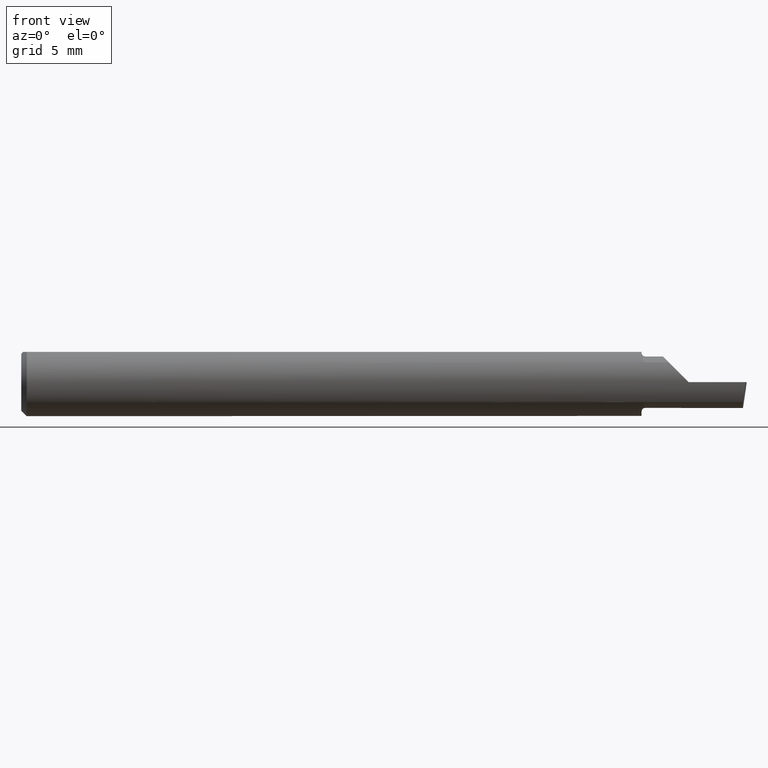
[diagram: clean part render]
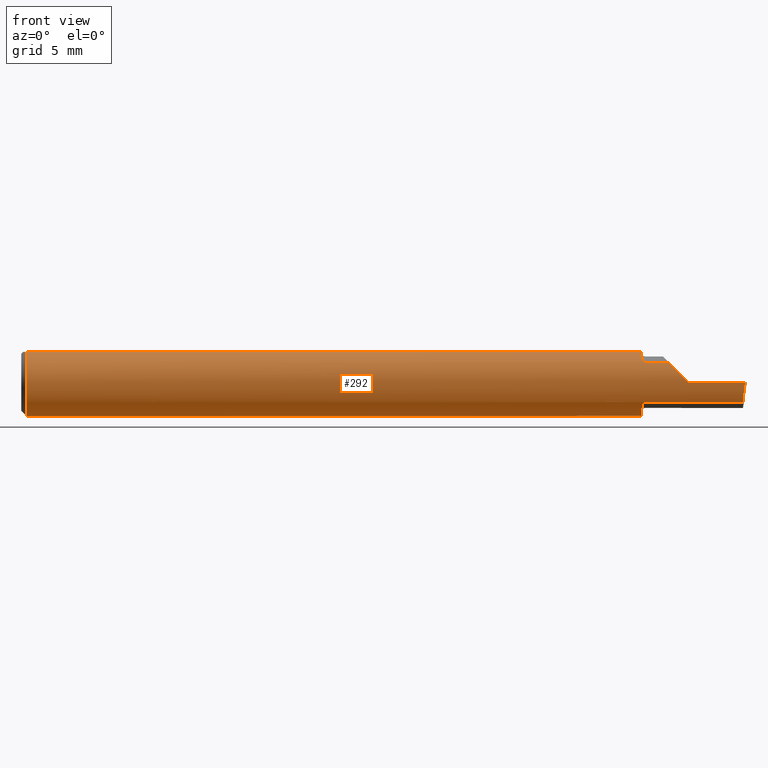
[diagram: same view with one face highlighted and labeled with its STEP entity id]
A machine part, front view. The second image highlights one B-rep face of the part: STEP entity #292.
In plain terms, the highlighted cylindrical surface (edge-blend (fillet) strip) has radius 2.3774 mm, axis along (-1, -0, -0).
Its self-contained STEP definition (entity closure, byte-faithful):
#2 = CARTESIAN_POINT ( 'NONE',  ( 1.717274038841562378, -0.07524850451016455721, 0.05566765164098562424 ) ) ;
#11 = LINE ( 'NONE', #409, #120 ) ;
#21 = DIRECTION ( 'NONE',  ( 1.000000000000000000, 4.268512490100411279E-18, 0.000000000000000000 ) ) ;
#24 = CARTESIAN_POINT ( 'NONE',  ( 1.709999999999999964, 0.04209513035969836975, 0.08360000000000000764 ) ) ;
#28 = ORIENTED_EDGE ( 'NONE', *, *, #442, .F. ) ;
#29 = EDGE_CURVE ( 'NONE', #616, #217, #559, .T. ) ;
#35 = ORIENTED_EDGE ( 'NONE', *, *, #494, .F. ) ;
#43 = CIRCLE ( 'NONE', #403, 0.09360000000000001652 ) ;
#53 = VECTOR ( 'NONE', #121, 39.37007874015748143 ) ;
#54 = CARTESIAN_POINT ( 'NONE',  ( 1.718473676570713593, -0.07585610839796945448, 0.05483680961684311850 ) ) ;
#56 = CARTESIAN_POINT ( 'NONE',  ( 1.995862624392068074, -0.09360000000000009979, -6.605666309584466665E-17 ) ) ;
#61 = DIRECTION ( 'NONE',  ( 0.000000000000000000, 1.000000000000000000, 0.000000000000000000 ) ) ;
#64 = CARTESIAN_POINT ( 'NONE',  ( 1.714827003863616639, -0.07277143353888318456, -0.05888471105536113165 ) ) ;
#67 = CARTESIAN_POINT ( 'NONE',  ( 1.720000000000000195, -0.07608366013071793388, -0.05451822320209443601 ) ) ;
#86 = CARTESIAN_POINT ( 'NONE',  ( 1.995862624392068074, -0.09360000000000009979, -6.605666309584466665E-17 ) ) ;
#93 = EDGE_CURVE ( 'NONE', #404, #283, #189, .T. ) ;
#94 = CARTESIAN_POINT ( 'NONE',  ( 1.709999999999999964, -0.05124705882352875719, -0.07832431909654745394 ) ) ;
#99 = DIRECTION ( 'NONE',  ( 0.000000000000000000, 0.000000000000000000, 1.000000000000000000 ) ) ;
#104 = CARTESIAN_POINT ( 'NONE',  ( 1.993440754331651465, -0.09359999999999997489, -0.01971778966533913047 ) ) ;
#105 = EDGE_CURVE ( 'NONE', #217, #397, #139, .T. ) ;
#120 = VECTOR ( 'NONE', #599, 39.37007874015748143 ) ;
#121 = DIRECTION ( 'NONE',  ( 1.000000000000000000, 0.000000000000000000, 0.000000000000000000 ) ) ;
#132 = CARTESIAN_POINT ( 'NONE',  ( 1.785481776797905207, -0.07608366013071816980, 0.05451822320209426254 ) ) ;
#135 = VERTEX_POINT ( 'NONE', #24 ) ;
#139 = B_SPLINE_CURVE_WITH_KNOTS ( 'NONE', 3,
 ( #67, #163, #357, #305, #267, #548, #64, #506, #496, #265, #413, #603 ),
 .UNSPECIFIED., .F., .F.,
 ( 4, 2, 2, 2, 2, 4 ),
 ( 1.960583526681140727E-07, 6.028985140017707658E-05, 0.0001203836444476860413, 0.0002405712305427156665, 0.0004809464027327820185, 0.0009616967471129146683 ),
 .UNSPECIFIED. ) ;
#141 = VERTEX_POINT ( 'NONE', #155 ) ;
#143 = CARTESIAN_POINT ( 'NONE',  ( 1.715489888950000541, -0.07368588061300233860, 0.05773267164777336202 ) ) ;
#147 = CARTESIAN_POINT ( 'NONE',  ( 1.709999999999999964, -0.05124705882352875719, 0.07832431909654745394 ) ) ;
#153 = CARTESIAN_POINT ( 'NONE',  ( 0.01499999999999999771, 0.000000000000000000, 0.000000000000000000 ) ) ;
#155 = CARTESIAN_POINT ( 'NONE',  ( 1.785481776797905207, -0.07608366013071816980, 0.05451822320209426254 ) ) ;
#160 = EDGE_CURVE ( 'NONE', #197, #565, #541, .T. ) ;
#163 = CARTESIAN_POINT ( 'NONE',  ( 1.719195764731853204, -0.07608366013071808653, -0.05451822320209438744 ) ) ;
#168 = ORIENTED_EDGE ( 'NONE', *, *, #160, .F. ) ;
#171 = EDGE_CURVE ( 'NONE', #197, #135, #329, .T. ) ;
#178 = CARTESIAN_POINT ( 'NONE',  ( 5.659797890829555466E-31, -0.09359999999999998876, 1.030335658007946046E-15 ) ) ;
#183 = ORIENTED_EDGE ( 'NONE', *, *, #216, .T. ) ;
#188 = CARTESIAN_POINT ( 'NONE',  ( 1.716784836976331441, -0.07487406389417279595, 0.05617172020063040255 ) ) ;
#189 = CIRCLE ( 'NONE', #269, 0.09360000000000001652 ) ;
#190 = ORIENTED_EDGE ( 'NONE', *, *, #171, .T. ) ;
#192 = CARTESIAN_POINT ( 'NONE',  ( 1.710534125572247044, -0.06132673142899455060, 0.07097811612434590245 ) ) ;
#197 = VERTEX_POINT ( 'NONE', #423 ) ;
#199 = VECTOR ( 'NONE', #426, 39.37007874015748143 ) ;
#215 = DIRECTION ( 'NONE',  ( 0.000000000000000000, 1.000000000000000000, 0.000000000000000000 ) ) ;
#216 = EDGE_CURVE ( 'NONE', #555, #141, #407, .T. ) ;
#217 = VERTEX_POINT ( 'NONE', #229 ) ;
#218 = AXIS2_PLACEMENT_3D ( 'NONE', #567, #284, #281 ) ;
#229 = CARTESIAN_POINT ( 'NONE',  ( 1.720000000000000195, -0.07608366013071793388, -0.05451822320209443601 ) ) ;
#235 = CARTESIAN_POINT ( 'NONE',  ( 1.840000000000000080, -0.09360000000000005815, 1.959434878635762025E-17 ) ) ;
#237 =( BOUNDED_CURVE ( )  B_SPLINE_CURVE ( 3, ( #56, #104, #543, #312 ),
 .UNSPECIFIED., .F., .T. ) 
 B_SPLINE_CURVE_WITH_KNOTS ( ( 4, 4 ),
 ( 4.922438424664829171, 5.544189768309972344 ),
 .UNSPECIFIED. ) 
 CURVE ( )  GEOMETRIC_REPRESENTATION_ITEM ( )  RATIONAL_B_SPLINE_CURVE ( ( 1.000000000000000000, 0.9680440490283177546, 0.9680440490283177546, 1.000000000000000000 ) ) 
 REPRESENTATION_ITEM ( '' )  );
#239 = ORIENTED_EDGE ( 'NONE', *, *, #345, .F. ) ;
#241 = CARTESIAN_POINT ( 'NONE',  ( 1.713144100988027274, -0.06997305607905093816, 0.06223599654134575471 ) ) ;
#251 = ORIENTED_EDGE ( 'NONE', *, *, #105, .F. ) ;
#261 = VERTEX_POINT ( 'NONE', #86 ) ;
#265 = CARTESIAN_POINT ( 'NONE',  ( 1.710545495784617565, -0.06137120719773635213, -0.07093526316025884626 ) ) ;
#267 = CARTESIAN_POINT ( 'NONE',  ( 1.716772139689988652, -0.07486452143272069593, -0.05618454731867568441 ) ) ;
#269 = AXIS2_PLACEMENT_3D ( 'NONE', #459, #21, #215 ) ;
#277 = VERTEX_POINT ( 'NONE', #475 ) ;
#279 = EDGE_CURVE ( 'NONE', #261, #555, #462, .T. ) ;
#281 = DIRECTION ( 'NONE',  ( 0.000000000000000000, 0.000000000000000000, 1.000000000000000000 ) ) ;
#283 = VERTEX_POINT ( 'NONE', #373 ) ;
#284 = DIRECTION ( 'NONE',  ( -1.000000000000000000, -0.000000000000000000, -0.000000000000000000 ) ) ;
#291 = AXIS2_PLACEMENT_3D ( 'NONE', #153, #349, #99 ) ;
#292 = ADVANCED_FACE ( 'NONE', ( #376 ), #472, .T. ) ;
#294 = CARTESIAN_POINT ( 'NONE',  ( 1.709999999999999964, -0.04209513035969836975, 0.08360000000000000764 ) ) ;
#305 = CARTESIAN_POINT ( 'NONE',  ( 1.717255593289993776, -0.07523687841986032021, -0.05568342680279920326 ) ) ;
#312 = CARTESIAN_POINT ( 'NONE',  ( 1.989625015145392917, -0.07608366013071815592, -0.05451822320209428335 ) ) ;
#315 = B_SPLINE_CURVE_WITH_KNOTS ( 'NONE', 3,
 ( #147, #485, #192, #383, #241, #487, #143, #188, #2, #54, #390, #483 ),
 .UNSPECIFIED., .F., .F.,
 ( 4, 2, 2, 2, 2, 4 ),
 ( 0.0001292192584720408327, 0.0006028894267275358015, 0.0008397245108552831233, 0.0009581420529191532606, 0.001017350823951088546, 0.001076559594983023506 ),
 .UNSPECIFIED. ) ;
#328 = VERTEX_POINT ( 'NONE', #574 ) ;
#329 = LINE ( 'NONE', #379, #53 ) ;
#345 = EDGE_CURVE ( 'NONE', #283, #277, #315, .T. ) ;
#349 = DIRECTION ( 'NONE',  ( -1.000000000000000000, -0.000000000000000000, -0.000000000000000000 ) ) ;
#352 = DIRECTION ( 'NONE',  ( 1.000000000000000000, 4.268512490100411279E-18, 0.000000000000000000 ) ) ;
#357 = CARTESIAN_POINT ( 'NONE',  ( 1.718462354721605800, -0.07585260197937360171, -0.05484172378605783882 ) ) ;
#359 = CARTESIAN_POINT ( 'NONE',  ( 0.000000000000000000, -0.04209513035969835587, 0.08360000000000000764 ) ) ;
#366 = ORIENTED_EDGE ( 'NONE', *, *, #29, .F. ) ;
#373 = CARTESIAN_POINT ( 'NONE',  ( 1.709999999999999964, -0.05124705882352875719, 0.07832431909654745394 ) ) ;
#376 = FACE_OUTER_BOUND ( 'NONE', #380, .T. ) ;
#379 = CARTESIAN_POINT ( 'NONE',  ( 0.000000000000000000, 0.04209513035969837669, 0.08360000000000000764 ) ) ;
#380 = EDGE_LOOP ( 'NONE', ( #28, #531, #183, #35, #239, #408, #552, #385, #168, #190, #469, #251, #366 ) ) ;
#383 = CARTESIAN_POINT ( 'NONE',  ( 1.712368935748502130, -0.06790301253196910636, 0.06449508607765816470 ) ) ;
#385 = ORIENTED_EDGE ( 'NONE', *, *, #431, .F. ) ;
#390 = CARTESIAN_POINT ( 'NONE',  ( 1.719201872979496892, -0.07608366013071805878, 0.05451822320209435274 ) ) ;
#397 = VERTEX_POINT ( 'NONE', #94 ) ;
#402 = DIRECTION ( 'NONE',  ( -1.000000000000000000, -0.000000000000000000, -0.000000000000000000 ) ) ;
#403 = AXIS2_PLACEMENT_3D ( 'NONE', #505, #352, #61 ) ;
#404 = VERTEX_POINT ( 'NONE', #294 ) ;
#405 = LINE ( 'NONE', #359, #471 ) ;
#407 =( BOUNDED_CURVE ( )  B_SPLINE_CURVE ( 3, ( #235, #606, #609, #132 ),
 .UNSPECIFIED., .F., .T. ) 
 B_SPLINE_CURVE_WITH_KNOTS ( ( 4, 4 ),
 ( 4.712388980384689674, 5.334140324029831959 ),
 .UNSPECIFIED. ) 
 CURVE ( )  GEOMETRIC_REPRESENTATION_ITEM ( )  RATIONAL_B_SPLINE_CURVE ( ( 1.000000000000000000, 0.9680440490283178656, 0.9680440490283178656, 1.000000000000000000 ) ) 
 REPRESENTATION_ITEM ( '' )  );
#408 = ORIENTED_EDGE ( 'NONE', *, *, #93, .F. ) ;
#409 = CARTESIAN_POINT ( 'NONE',  ( 1.795000000000000151, -0.07608366013071815592, 0.05451822320209428335 ) ) ;
#413 = CARTESIAN_POINT ( 'NONE',  ( 1.709999999999999520, -0.05647823901975165817, -0.07490159417120388630 ) ) ;
#422 = AXIS2_PLACEMENT_3D ( 'NONE', #448, #402, #544 ) ;
#423 = CARTESIAN_POINT ( 'NONE',  ( 0.01499999999999999771, 0.04209513035969837669, 0.08360000000000000764 ) ) ;
#426 = DIRECTION ( 'NONE',  ( -1.000000000000000000, -0.000000000000000000, -0.000000000000000000 ) ) ;
#431 = EDGE_CURVE ( 'NONE', #565, #328, #512, .T. ) ;
#442 = EDGE_CURVE ( 'NONE', #261, #616, #237, .T. ) ;
#446 = DIRECTION ( 'NONE',  ( -1.000000000000000000, -0.000000000000000000, -0.000000000000000000 ) ) ;
#448 = CARTESIAN_POINT ( 'NONE',  ( 0.01499999999999999771, 0.000000000000000000, 0.000000000000000000 ) ) ;
#449 = CARTESIAN_POINT ( 'NONE',  ( 1.840000000000000080, -0.09360000000000005815, 1.959434878635762025E-17 ) ) ;
#459 = CARTESIAN_POINT ( 'NONE',  ( 1.709999999999999964, 0.000000000000000000, 0.000000000000000000 ) ) ;
#462 = LINE ( 'NONE', #178, #199 ) ;
#469 = ORIENTED_EDGE ( 'NONE', *, *, #484, .F. ) ;
#471 = VECTOR ( 'NONE', #446, 39.37007874015748143 ) ;
#472 = CYLINDRICAL_SURFACE ( 'NONE', #218, 0.09360000000000001652 ) ;
#475 = CARTESIAN_POINT ( 'NONE',  ( 1.720000000000000195, -0.07608366013071798939, 0.05451822320209439438 ) ) ;
#483 = CARTESIAN_POINT ( 'NONE',  ( 1.720000000000000195, -0.07608366013071798939, 0.05451822320209439438 ) ) ;
#484 = EDGE_CURVE ( 'NONE', #397, #135, #43, .T. ) ;
#485 = CARTESIAN_POINT ( 'NONE',  ( 1.710000000000000409, -0.05646263573910658556, 0.07491180328952479206 ) ) ;
#487 = CARTESIAN_POINT ( 'NONE',  ( 1.714839705942174497, -0.07279020899454211047, 0.05886163806049839881 ) ) ;
#494 = EDGE_CURVE ( 'NONE', #277, #141, #11, .T. ) ;
#496 = CARTESIAN_POINT ( 'NONE',  ( 1.712366482919568389, -0.06789235473351258598, -0.06450509535586744503 ) ) ;
#499 = CARTESIAN_POINT ( 'NONE',  ( 1.989625015145392917, -0.07608366013071815592, -0.05451822320209428335 ) ) ;
#505 = CARTESIAN_POINT ( 'NONE',  ( 1.709999999999999964, 0.000000000000000000, 0.000000000000000000 ) ) ;
#506 = CARTESIAN_POINT ( 'NONE',  ( 1.713141534512609088, -0.06996407692806697054, -0.06224556916852273802 ) ) ;
#512 = CIRCLE ( 'NONE', #291, 0.09360000000000001652 ) ;
#517 = DIRECTION ( 'NONE',  ( -1.000000000000000000, -4.268512490100411279E-18, -0.000000000000000000 ) ) ;
#528 = CARTESIAN_POINT ( 'NONE',  ( 1.795000000000000151, -0.07608366013071815592, -0.05451822320209428335 ) ) ;
#531 = ORIENTED_EDGE ( 'NONE', *, *, #279, .T. ) ;
#541 = CIRCLE ( 'NONE', #422, 0.09360000000000001652 ) ;
#543 = CARTESIAN_POINT ( 'NONE',  ( 1.991292915001083852, -0.08756847698997992369, -0.03849042825095493753 ) ) ;
#544 = DIRECTION ( 'NONE',  ( 0.000000000000000000, 0.000000000000000000, 1.000000000000000000 ) ) ;
#548 = CARTESIAN_POINT ( 'NONE',  ( 1.715465209761169563, -0.07365889674705998480, -0.05776752233760042154 ) ) ;
#551 = VECTOR ( 'NONE', #517, 39.37007874015748143 ) ;
#552 = ORIENTED_EDGE ( 'NONE', *, *, #564, .T. ) ;
#555 = VERTEX_POINT ( 'NONE', #449 ) ;
#559 = LINE ( 'NONE', #528, #551 ) ;
#564 = EDGE_CURVE ( 'NONE', #404, #328, #405, .T. ) ;
#565 = VERTEX_POINT ( 'NONE', #596 ) ;
#567 = CARTESIAN_POINT ( 'NONE',  ( 0.000000000000000000, 0.000000000000000000, 0.000000000000000000 ) ) ;
#574 = CARTESIAN_POINT ( 'NONE',  ( 0.01500000000000000291, -0.04209513035969835587, 0.08360000000000000764 ) ) ;
#596 = CARTESIAN_POINT ( 'NONE',  ( 0.01499999999999999771, 0.000000000000000000, -0.09360000000000001652 ) ) ;
#599 = DIRECTION ( 'NONE',  ( 1.000000000000000000, 4.268512490100411279E-18, 0.000000000000000000 ) ) ;
#603 = CARTESIAN_POINT ( 'NONE',  ( 1.709999999999999964, -0.05124705882352875719, -0.07832431909654745394 ) ) ;
#606 = CARTESIAN_POINT ( 'NONE',  ( 1.820282210334660977, -0.09360000000000003040, 0.01971778966533903332 ) ) ;
#609 = CARTESIAN_POINT ( 'NONE',  ( 1.801509571749044802, -0.08756847698997997920, 0.03849042825095481957 ) ) ;
#616 = VERTEX_POINT ( 'NONE', #499 ) ;